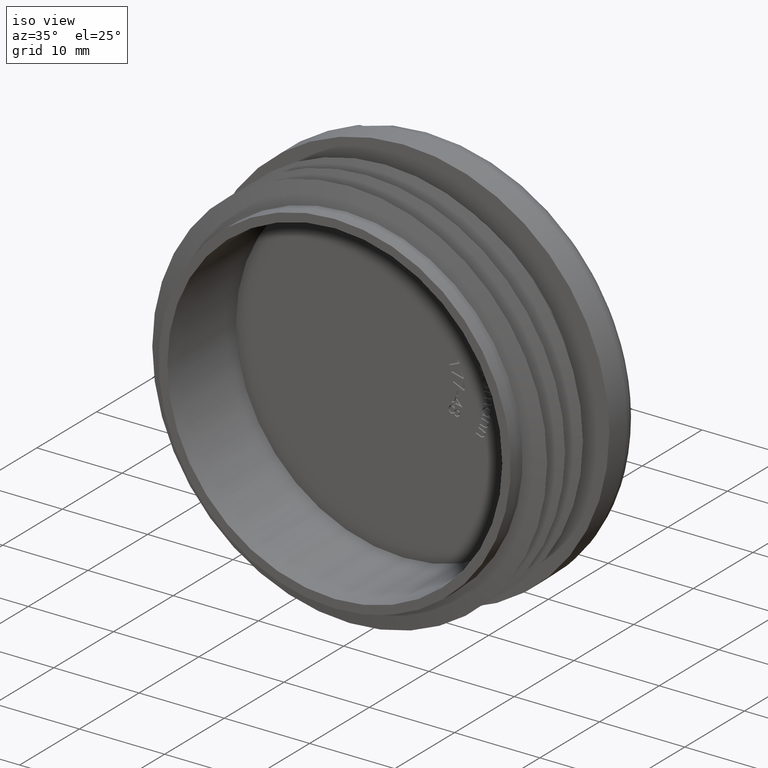
[diagram: clean part render]
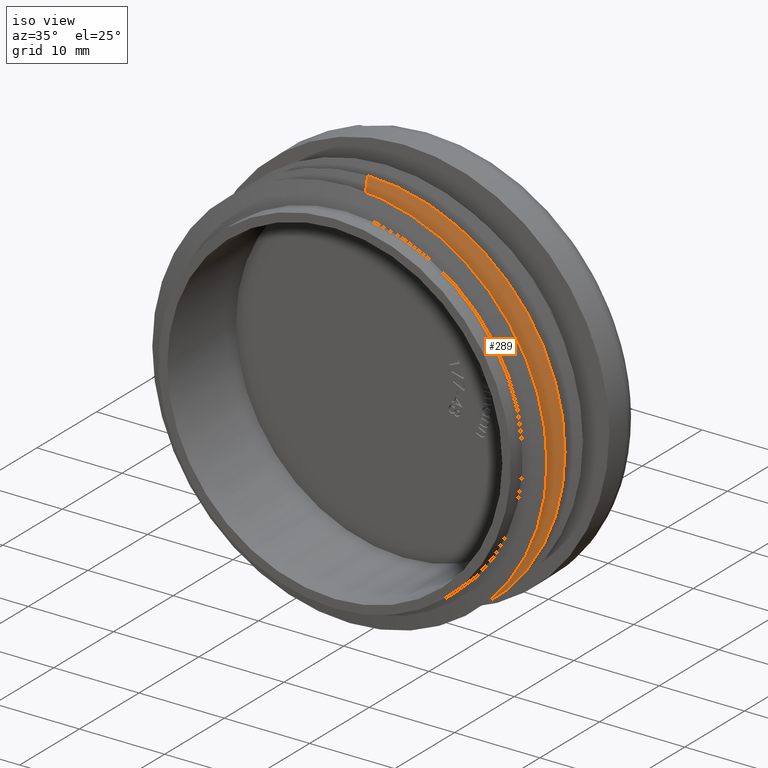
[diagram: same view with one face highlighted and labeled with its STEP entity id]
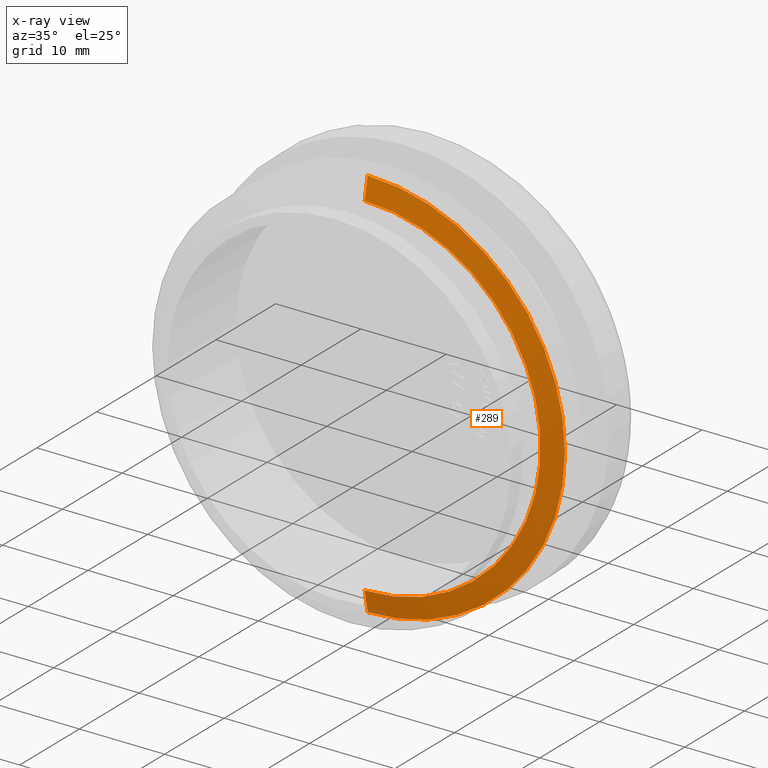
[diagram: x-ray of the same camera — body ghosted, the highlighted face saturated]
A machine part, iso view. The second image highlights one B-rep face of the part: STEP entity #289.
The next image is the same camera in x-ray: the body ghosted, the highlighted face saturated — about 1% of this face is hidden behind the body in this view.
In plain terms, the highlighted conical surface has half-angle 78.69 deg.
Its self-contained STEP definition (entity closure, byte-faithful):
#289 = ADVANCED_FACE ( 'NONE', ( #6999 ), #833, .T. ) ;
#478 = DIRECTION ( 'NONE',  ( 0.0000000000000000000, 0.0000000000000000000, 1.000000000000000000 ) ) ;
#482 = DIRECTION ( 'NONE',  ( -0.0000000000000000000, 1.000000000000000000, -0.0000000000000000000 ) ) ;
#488 = CARTESIAN_POINT ( 'NONE',  ( 0.0000000000000000000, -6.000000000000000000, 0.0000000000000000000 ) ) ;
#833 = CONICAL_SURFACE ( 'NONE', #3571, 20.64999999999999900, 1.373400766945015700 ) ;
#1399 = ORIENTED_EDGE ( 'NONE', *, *, #3919, .T. ) ;
#1418 = CARTESIAN_POINT ( 'NONE',  ( 2.835057340026122400E-015, -6.000000000000000000, -23.14999999999999900 ) ) ;
#1944 = VECTOR ( 'NONE', #4772, 999.9999999999998900 ) ;
#2006 = DIRECTION ( 'NONE',  ( -0.0000000000000000000, 1.000000000000000000, -0.0000000000000000000 ) ) ;
#2018 = ORIENTED_EDGE ( 'NONE', *, *, #2145, .F. ) ;
#2145 = EDGE_CURVE ( 'NONE', #3172, #4867, #8217, .T. ) ;
#3172 = VERTEX_POINT ( 'NONE', #5366 ) ;
#3505 = CARTESIAN_POINT ( 'NONE',  ( 0.0000000000000000000, -6.500000000000000900, 0.0000000000000000000 ) ) ;
#3520 = DIRECTION ( 'NONE',  ( 0.0000000000000000000, 0.0000000000000000000, 1.000000000000000000 ) ) ;
#3532 = DIRECTION ( 'NONE',  ( -0.0000000000000000000, 1.000000000000000000, -0.0000000000000000000 ) ) ;
#3571 = AXIS2_PLACEMENT_3D ( 'NONE', #3505, #3532, #3520 ) ;
#3853 = DIRECTION ( 'NONE',  ( 0.0000000000000000000, 0.1961161351381842400, 0.9805806756909202200 ) ) ;
#3919 = EDGE_CURVE ( 'NONE', #5636, #4834, #7244, .T. ) ;
#4274 = EDGE_CURVE ( 'NONE', #4834, #4867, #5911, .T. ) ;
#4300 = CARTESIAN_POINT ( 'NONE',  ( 2.528895640239284100E-015, -6.500000000000000900, -20.64999999999999900 ) ) ;
#4476 = EDGE_CURVE ( 'NONE', #5636, #3172, #7959, .T. ) ;
#4772 = DIRECTION ( 'NONE',  ( 1.200864985790634400E-016, 0.1961161351381842400, -0.9805806756909202200 ) ) ;
#4834 = VERTEX_POINT ( 'NONE', #4300 ) ;
#4849 = AXIS2_PLACEMENT_3D ( 'NONE', #488, #482, #478 ) ;
#4867 = VERTEX_POINT ( 'NONE', #1418 ) ;
#5366 = CARTESIAN_POINT ( 'NONE',  ( 0.0000000000000000000, -6.000000000000000000, 23.14999999999999900 ) ) ;
#5429 = ORIENTED_EDGE ( 'NONE', *, *, #4476, .F. ) ;
#5636 = VERTEX_POINT ( 'NONE', #5719 ) ;
#5719 = CARTESIAN_POINT ( 'NONE',  ( 0.0000000000000000000, -6.500000000000000900, 20.64999999999999900 ) ) ;
#5911 = LINE ( 'NONE', #8273, #1944 ) ;
#6156 = VECTOR ( 'NONE', #3853, 999.9999999999998900 ) ;
#6472 = CARTESIAN_POINT ( 'NONE',  ( 0.0000000000000000000, -6.500000000000000900, 0.0000000000000000000 ) ) ;
#6999 = FACE_OUTER_BOUND ( 'NONE', #8026, .T. ) ;
#7174 = DIRECTION ( 'NONE',  ( 0.0000000000000000000, 0.0000000000000000000, 1.000000000000000000 ) ) ;
#7244 = CIRCLE ( 'NONE', #8087, 20.64999999999999900 ) ;
#7937 = ORIENTED_EDGE ( 'NONE', *, *, #4274, .T. ) ;
#7959 = LINE ( 'NONE', #8735, #6156 ) ;
#8026 = EDGE_LOOP ( 'NONE', ( #1399, #7937, #2018, #5429 ) ) ;
#8087 = AXIS2_PLACEMENT_3D ( 'NONE', #6472, #2006, #7174 ) ;
#8217 = CIRCLE ( 'NONE', #4849, 23.14999999999999900 ) ;
#8273 = CARTESIAN_POINT ( 'NONE',  ( 2.528895640239284100E-015, -6.500000000000000900, -20.64999999999999900 ) ) ;
#8735 = CARTESIAN_POINT ( 'NONE',  ( 0.0000000000000000000, -6.500000000000000900, 20.64999999999999900 ) ) ;